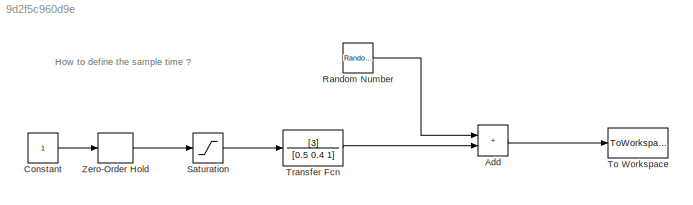
MODEL slx_9d2f5c960d9e
KIND model
CONFIG AbsTol = auto
CONFIG EnableMultiTasking = off
CONFIG FixedStep = auto
CONFIG MaxStep = auto
CONFIG MinStep = auto
CONFIG RelTol = 1e-3
CONFIG SampleTimeConstraint = Unconstrained
CONFIG SolverName = VariableStepAuto
CONFIG StartTime = 0.0
CONFIG StopTime = 10.0
BLOCK [Sum] Add
  IconShape = rectangular
  Ports = [2, 1]
BLOCK [Constant] Constant
BLOCK [RandomNumber] Random Number
  SampleTime = 0.2
  Variance = 0.15
BLOCK [Saturate] Saturation
  LowerLimit = -0.7
  UpperLimit = 0.7
BLOCK [ToWorkspace] To Workspace
  MaxDataPoints = inf
  Ports = [1]
  SampleTime = 0.2
  SaveFormat = Timeseries
  VariableName = simout
BLOCK [TransferFcn] Transfer Fcn
  Denominator = [0.5 0.4 1]
  Numerator = [3]
BLOCK [ZeroOrderHold] Zero-Order Hold
  SampleTime = 0.2
ANNOTATION (root): How to define the sample time ?
LINE Add:1 -> To Workspace:1
LINE Constant:1 -> Zero-Order Hold:1
LINE Random Number:1 -> Add:1
LINE Saturation:1 -> Transfer Fcn:1
LINE Transfer Fcn:1 -> Add:2
LINE Zero-Order Hold:1 -> Saturation:1
